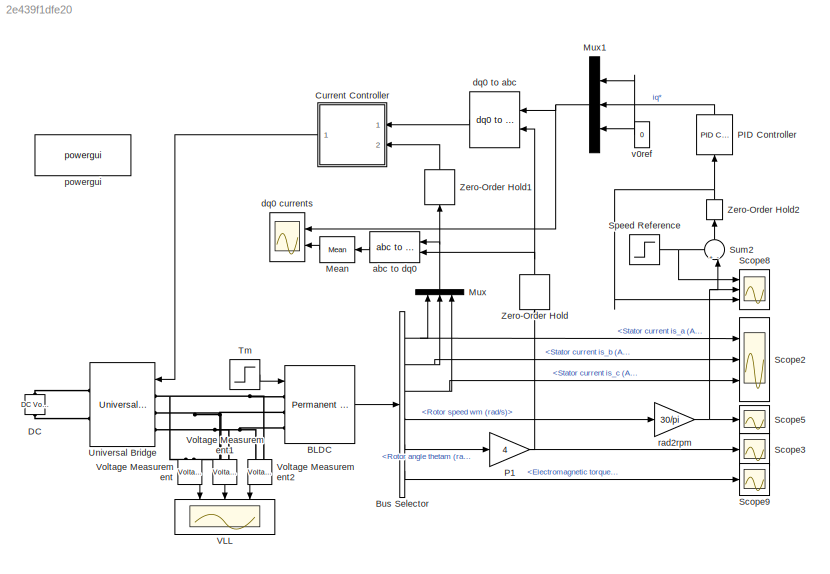
MODEL slx_2e439f1dfe20
KIND model
BLOCK [Reference] BLDC  REF=powerlib/Machines/Permanent Magnet
Synchronous Machine
  Flat = 120
  Flux = 0.0125
  FluxDistribution = Trapezoidal
  Inductance = 1e-4
  InitialConditions = [0,0, 0,0]
  InitialConditions5ph = [0 0 0 0 0 0]
  La = 0.000835
  MachineConstant = Torque Constant (N.m / A_peak)
  Mechanical = [1e-3 1e-3 4 0]
  MechanicalLoad = Torque Tm
  NbPhases = 3
  PolePairs = 4
  Ports = [1, 1, 0, 0, 0, 3]
  PresetModel = No
  RefAngle = Aligned with phase A axis (original Park)
  Resistance = 0.01
  RotorType = Round
  ShowDetailedParameters = on
  SourceBlock = powerlib/Machines/Permanent Magnet\nSynchronous Machine
  SourceType = Permanent Magnet Synchronous Machine
  TorqueCst = 0.1
  TsBlock = -1
  TsPowergui = 0
  VoltageCst = 10.472
  dqInductances = [8.5e-3,8.5e-3]
BLOCK [BusSelector] Bus Selector
  OutputSignals = Stator current is_a (A),Stator current is_b (A),Stator current is_c (A),Rotor speed wm (rad/s),Rotor angle thetam (rad),Electromagnetic torque Te (N*m)
  Ports = [1, 6]
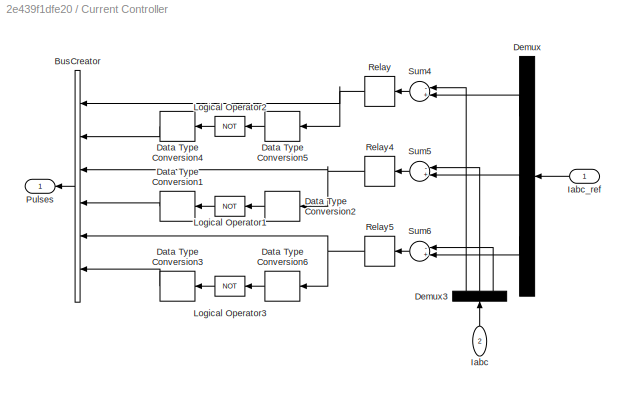
BLOCK [SubSystem] Current Controller
  FunctionWithSeparateData = off
  MaskHideContents = off
  MinAlgLoopOccurrences = off
  Opaque = off
  Ports = [2, 1]
  PropExecContextOutsideSubsystem = off
  RTWSystemCode = Auto
  RequestExecContextInheritance = off
BLOCK [BusCreator] Current Controller/BusCreator
  Inputs = 6
  Ports = [6, 1]
BLOCK [DataTypeConversion] Current Controller/Data Type Conversion1
BLOCK [DataTypeConversion] Current Controller/Data Type Conversion2
BLOCK [DataTypeConversion] Current Controller/Data Type Conversion3
BLOCK [DataTypeConversion] Current Controller/Data Type Conversion4
BLOCK [DataTypeConversion] Current Controller/Data Type Conversion5
BLOCK [DataTypeConversion] Current Controller/Data Type Conversion6
BLOCK [Demux] Current Controller/Demux
  DisplayOption = bar
  Outputs = 3
  Ports = [1, 3]
BLOCK [Demux] Current Controller/Demux3
  DisplayOption = bar
  Outputs = 3
  Ports = [1, 3]
BLOCK [Inport] Current Controller/Iabc
  IconDisplay = Port number
  Port = 2
BLOCK [Inport] Current Controller/Iabc_ref
  IconDisplay = Port number
BLOCK [Logic] Current Controller/Logical Operator1
  Operator = NOT
  Ports = [1, 1]
BLOCK [Logic] Current Controller/Logical Operator2
  Operator = NOT
  Ports = [1, 1]
BLOCK [Logic] Current Controller/Logical Operator3
  Operator = NOT
  Ports = [1, 1]
BLOCK [Outport] Current Controller/Pulses
  IconDisplay = Port number
BLOCK [Relay] Current Controller/Relay
  InputProcessing = Elements as channels (sample based)
  OffSwitchValue = -1/1000
  OnSwitchValue = 1/1000
BLOCK [Relay] Current Controller/Relay4
  InputProcessing = Elements as channels (sample based)
  OffSwitchValue = -1/1000
  OnSwitchValue = 1/1000
BLOCK [Relay] Current Controller/Relay5
  InputProcessing = Elements as channels (sample based)
  OffSwitchValue = -1/1000
  OnSwitchValue = 1/1000
BLOCK [Sum] Current Controller/Sum4
  Inputs = -+
  Ports = [2, 1]
BLOCK [Sum] Current Controller/Sum5
  Inputs = -+
  Ports = [2, 1]
BLOCK [Sum] Current Controller/Sum6
  Inputs = -+
  Ports = [2, 1]
BLOCK [Reference] DC  REF=powerlib/Electrical
Sources/DC Voltage Source
  Amplitude = 48
  Measurements = None
  Ports = [0, 0, 0, 0, 0, 1, 1]
  SourceBlock = powerlib/Electrical\nSources/DC Voltage Source
  SourceType = DC Voltage Source
BLOCK [Reference] Mean  REF=powerlib_meascontrol/Measurements/Mean
  Freq = 10
  Ports = [1, 1]
  SourceBlock = powerlib_meascontrol/Measurements/Mean
  SourceType = Mean
  Ts = 0
  Vinit = 0
BLOCK [Mux] Mux
  DisplayOption = bar
  Inputs = 3
  Ports = [3, 1]
BLOCK [Mux] Mux1
  DisplayOption = bar
  Inputs = 3
  Ports = [3, 1]
BLOCK [Gain] P1
  Gain = 4
  OutDataTypeStr = Inherit: Inherit via internal rule
  ParamDataTypeStr = Inherit: Inherit via internal rule
  SaturateOnIntegerOverflow = off
BLOCK [Reference] PID Controller  REF=simulink/Continuous/PID Controller
  AntiWindupMode = clamping
  Controller = PID
  D = 0
  DOutDataTypeStr = Inherit: Inherit via internal rule
  DOutMax = []
  DOutMin = []
  DParamDataTypeStr = Inherit: Inherit via internal rule
  DParamMax = []
  DParamMin = []
  ExternalReset = none
  FilterContinuousStateAttributes = ''
  FilterMethod = Forward Euler
  FilterOutDataTypeStr = Inherit: Inherit via internal rule
  FilterOutMax = []
  FilterOutMin = []
  FilterRTWStateStorageClass = Auto
  FilterStateMustResolveToSignalObject = off
  Form = Parallel
  I = 10
  IOutDataTypeStr = Inherit: Inherit via internal rule
  IOutMax = []
  IOutMin = []
  IParamDataTypeStr = Inherit: Inherit via internal rule
  IParamMax = []
  IParamMin = []
  IgnoreLimit = off
  InitialConditionForFilter = 0
  InitialConditionForIntegrator = 0
  InitialConditionSource = internal
  IntegratorContinuousStateAttributes = ''
  IntegratorMethod = Forward Euler
  IntegratorOutDataTypeStr = Inherit: Inherit via internal rule
  IntegratorOutMax = []
  IntegratorOutMin = []
  IntegratorRTWStateStorageClass = Auto
  IntegratorStateMustResolveToSignalObject = off
  Kb = 1
  KbOutDataTypeStr = Inherit: Inherit via internal rule
  KbOutMax = []
  KbOutMin = []
  KbParamDataTypeStr = Inherit: Inherit via internal rule
  KbParamMax = []
  KbParamMin = []
  Kt = 1
  KtOutDataTypeStr = Inherit: Inherit via internal rule
  KtOutMax = []
  KtOutMin = []
  KtParamDataTypeStr = Inherit: Inherit via internal rule
  KtParamMax = []
  KtParamMin = []
  LimitOutput = on
  LinearizeAsGain = on
  LockScale = off
  LowerSaturationLimit = -100
  N = 100
  NOutDataTypeStr = Inherit: Inherit via internal rule
  NOutMax = []
  NOutMin = []
  NParamDataTypeStr = Inherit: Inherit via internal rule
  NParamMax = []
  NParamMin = []
  P = 1
  POutDataTypeStr = Inherit: Inherit via internal rule
  POutMax = []
  POutMin = []
  PParamDataTypeStr = Inherit: Inherit via internal rule
  PParamMax = []
  PParamMin = []
  Ports = [1, 1]
  RndMeth = Floor
  SampleTime = 1
  SaturateOnIntegerOverflow = off
  SaturationOutDataTypeStr = Inherit: Same as input
  SaturationOutMax = []
  SaturationOutMin = []
  SourceBlock = simulink/Continuous/PID Controller
  SourceType = PID 1dof
  SumAccumDataTypeStr = Inherit: Inherit via internal rule
  SumDAccumDataTypeStr = Inherit: Inherit via internal rule
  SumDOutDataTypeStr = Inherit: Inherit via internal rule
  SumDOutMax = []
  SumDOutMin = []
  SumI1AccumDataTypeStr = Inherit: Inherit via internal rule
  SumI1OutDataTypeStr = Inherit: Inherit via internal rule
  SumI1OutMax = []
  SumI1OutMin = []
  SumI2AccumDataTypeStr = Inherit: Inherit via internal rule
  SumI2OutDataTypeStr = Inherit: Inherit via internal rule
  SumI2OutMax = []
  SumI2OutMin = []
  SumI3AccumDataTypeStr = Inherit: Inherit via internal rule
  SumI3OutDataTypeStr = Inherit: Inherit via internal rule
  SumI3OutMax = []
  SumI3OutMin = []
  SumOutDataTypeStr = Inherit: Inherit via internal rule
  SumOutMax = []
  SumOutMin = []
  TimeDomain = Continuous-time
  TrackingMode = off
  UpperSaturationLimit = 100
  ZeroCross = on
BLOCK [Scope] Scope2
  DataFormat = StructureWithTime
  Floating = off
  LimitDataPoints = off
  NumInputPorts = 3
  Ports = [3]
  SampleTime = 0
  ShowLegends = off
  YMax = 300~300~300
  YMin = -250~-250~-250
  ZoomMode = xonly
BLOCK [Scope] Scope3
  DataFormat = StructureWithTime
  Floating = off
  LimitDataPoints = off
  NumInputPorts = 1
  Ports = [1]
  SampleTime = 0
  SaveName = ScopeData1
  ShowLegends = off
  YMax = 7000
  YMin = 0
  ZoomMode = xonly
BLOCK [Scope] Scope5
  DataFormat = StructureWithTime
  Floating = off
  LimitDataPoints = off
  NumInputPorts = 1
  Ports = [1]
  SampleTime = 0
  SaveName = ScopeData5
  ShowLegends = off
  YMax = 7000
  YMin = -7000
BLOCK [Scope] Scope8
  DataFormat = StructureWithTime
  Floating = off
  LimitDataPoints = off
  NumInputPorts = 3
  Ports = [3]
  SampleTime = 0
  SaveName = ScopeData10
  ShowLegends = off
  YMax = 5000~5000~10
  YMin = -5000~-5000~-10
  ZoomMode = xonly
BLOCK [Scope] Scope9
  DataFormat = StructureWithTime
  Floating = off
  LimitDataPoints = off
  NumInputPorts = 1
  Ports = [1]
  SampleTime = 0
  SaveName = ScopeData11
  ShowLegends = off
  YMax = 10
  YMin = -10
  ZoomMode = xonly
BLOCK [Step] Speed Reference
  After = 4000
  Before = -4000
  SampleTime = 0
  Time = 2
BLOCK [Sum] Sum2
  IconShape = round
  InputSameDT = off
  Inputs = +-|
  OutDataTypeStr = Inherit: Inherit via internal rule
  Ports = [2, 1]
  SaturateOnIntegerOverflow = off
BLOCK [Step] Tm
  After = 0
  SampleTime = 0
  Time = 2
BLOCK [Reference] Universal Bridge  REF=powerlib/Power
Electronics/Universal Bridge
  Arms = 3
  Device = MOSFET / Diodes
  ForwardVoltage = 0
  ForwardVoltages = [  0  0  ]
  GTOparameters = [ 10e-6 , 20e-6 ]
  IGBTparameters = [ 1e-6 , 2e-6 ]
  Lon = 0
  Measurements = None
  Measurements_2 = None
  Ports = [1, 0, 0, 0, 0, 3, 2]
  Ron = 1e-3
  SnubberCapacitance = 1e-6
  SnubberResistance = 5000
  SourceBlock = powerlib/Power\nElectronics/Universal Bridge
  SourceType = Universal Bridge
  converterType = Rectifier
BLOCK [Scope] VLL
  DataFormat = StructureWithTime
  Floating = off
  LimitDataPoints = off
  NumInputPorts = 3
  Ports = [3]
  SampleTime = 0
  SaveName = ScopeData3
  ShowLegends = off
  YMax = 100~100~100
  YMin = -100~-100~-100
  ZoomMode = xonly
BLOCK [Reference] Voltage Measurement  REF=powerlib/Measurements/Voltage Measurement
  OutputType = Complex
  PSBequivalent = 0
  PhasorSimulation = off
  Ports = [0, 1, 0, 0, 0, 2]
  SourceBlock = powerlib/Measurements/Voltage Measurement
  SourceType = Voltage Measurement
BLOCK [Reference] Voltage Measurement1  REF=powerlib/Measurements/Voltage Measurement
  OutputType = Complex
  PSBequivalent = 0
  PhasorSimulation = off
  Ports = [0, 1, 0, 0, 0, 2]
  SourceBlock = powerlib/Measurements/Voltage Measurement
  SourceType = Voltage Measurement
BLOCK [Reference] Voltage Measurement2  REF=powerlib/Measurements/Voltage Measurement
  OutputType = Complex
  PSBequivalent = 0
  PhasorSimulation = off
  Ports = [0, 1, 0, 0, 0, 2]
  SourceBlock = powerlib/Measurements/Voltage Measurement
  SourceType = Voltage Measurement
BLOCK [ZeroOrderHold] Zero-Order Hold
  SampleTime = 1e-4
BLOCK [ZeroOrderHold] Zero-Order Hold1
  SampleTime = 1e-4
BLOCK [ZeroOrderHold] Zero-Order Hold2
  SampleTime = 1e-4
BLOCK [Reference] abc to dq0  REF=powerlib_meascontrol/Transformations/abc to dq0
  Alignment = Aligned with phase A axis
  Ports = [2, 1]
  SourceBlock = powerlib_meascontrol/Transformations/abc to dq0
  SourceType = abc to dq0 Transformation
BLOCK [Scope] dq0 currents
  DataFormat = StructureWithTime
  Floating = off
  LimitDataPoints = off
  NumInputPorts = 2
  Ports = [2]
  SampleTime = 0
  SaveName = ScopeData4
  ShowLegends = off
  YMax = 110~110
  YMin = -10~-10
  ZoomMode = xonly
BLOCK [Reference] dq0 to abc  REF=powerlib_meascontrol/Transformations/dq0 to abc
  Alignment = Aligned with phase A axis
  Ports = [2, 1]
  SourceBlock = powerlib_meascontrol/Transformations/dq0 to abc
  SourceType = dq0 to abc Transformation
BLOCK [Reference] powergui  REF=powerlib/powergui
  DisableRonSwitches = off
  DisableSnubberDevices = off
  DisableVfSwitches = off
  DisplayEquations = off
  DisplayStyle = 1
  EnableUseOfTLC = off
  ErrMax = 1e-4
  Frange = [0:2:500]
  FreqAxis = off
  FunctionMessages = off
  HookPort = off
  Interpol = off
  Iterations = 50
  MaxFrequency = 1000
  Pbase = 100e6
  Ports = []
  Priority = 2
  ResistiveCurrentMeasurement = off
  RestoreLinks = warning
  RmsSteady = 1
  SPID = off
  SampleTime = 1e-5
  ShowGrid = off
  SolverType = Backward Euler
  SourceBlock = powerlib/powergui
  SourceType = PSB option menu block
  StartTime = 0.0
  SwTol = 0
  Ts = 0
  UnitsV = kV
  UnitsW = MW
  UserDataPersistent = on
  Xlog = on
  Ylog = off
  ZoomFFT = on
  cycles = 1
  display = off
  echomessages = off
  frequency = 60
  frequencyindice = 0
  frequencyindicesteady = 1
  fundamental = 60
  methode = off
  save = off
  variable = ZData
  x0status = blocks
BLOCK [Gain] rad2rpm
  Gain = 30/pi
  OutDataTypeStr = Inherit: Inherit via internal rule
  ParamDataTypeStr = Inherit: Inherit via internal rule
  SaturateOnIntegerOverflow = off
BLOCK [Constant] v0ref
  Value = 0
LINE BLDC:1 -> Bus Selector:1
NET Bus Selector:1 -> Mux:1, Scope2:1
NET Bus Selector:2 -> Mux:2, Scope2:2
NET Bus Selector:3 -> Mux:3, Scope2:3
LINE Bus Selector:4 -> rad2rpm:1
LINE Bus Selector:5 -> P1:1
LINE Bus Selector:6 -> Scope9:1
LINE Current Controller/BusCreator:1 -> Current Controller/Pulses:1
LINE Current Controller/Data Type Conversion1:1 -> Current Controller/BusCreator:4
LINE Current Controller/Data Type Conversion2:1 -> Current Controller/Logical Operator1:1
LINE Current Controller/Data Type Conversion3:1 -> Current Controller/BusCreator:6
LINE Current Controller/Data Type Conversion4:1 -> Current Controller/BusCreator:2
LINE Current Controller/Data Type Conversion5:1 -> Current Controller/Logical Operator2:1
LINE Current Controller/Data Type Conversion6:1 -> Current Controller/Logical Operator3:1
LINE Current Controller/Demux3:1 -> Current Controller/Sum4:1
LINE Current Controller/Demux3:2 -> Current Controller/Sum5:1
LINE Current Controller/Demux3:3 -> Current Controller/Sum6:1
LINE Current Controller/Demux:1 -> Current Controller/Sum4:2
LINE Current Controller/Demux:2 -> Current Controller/Sum5:2
LINE Current Controller/Demux:3 -> Current Controller/Sum6:2
LINE Current Controller/Iabc:1 -> Current Controller/Demux3:1
LINE Current Controller/Iabc_ref:1 -> Current Controller/Demux:1
LINE Current Controller/Logical Operator1:1 -> Current Controller/Data Type Conversion1:1
LINE Current Controller/Logical Operator2:1 -> Current Controller/Data Type Conversion4:1
LINE Current Controller/Logical Operator3:1 -> Current Controller/Data Type Conversion3:1
NET Current Controller/Relay4:1 -> Current Controller/BusCreator:3, Current Controller/Data Type Conversion2:1
NET Current Controller/Relay5:1 -> Current Controller/BusCreator:5, Current Controller/Data Type Conversion6:1
NET Current Controller/Relay:1 -> Current Controller/BusCreator:1, Current Controller/Data Type Conversion5:1
LINE Current Controller/Sum4:1 -> Current Controller/Relay:1
LINE Current Controller/Sum5:1 -> Current Controller/Relay4:1
LINE Current Controller/Sum6:1 -> Current Controller/Relay5:1
LINE Current Controller:1 -> Universal Bridge:1
LINE Mean:1 -> dq0 currents:2
NET Mux1:1 -> dq0 currents:1, dq0 to abc:1
NET Mux:1 -> Zero-Order Hold1:1, abc to dq0:1
NET P1:1 -> Scope3:1, Zero-Order Hold:1
LINE PID Controller:1 -> Mux1:2
NET Speed Reference:1 -> Scope8:1, Sum2:1
LINE Sum2:1 -> Zero-Order Hold2:1
LINE Tm:1 -> BLDC:1
LINE Voltage Measurement1:1 -> VLL:2
LINE Voltage Measurement2:1 -> VLL:3
LINE Voltage Measurement:1 -> VLL:1
LINE Zero-Order Hold1:1 -> Current Controller:2
NET Zero-Order Hold2:1 -> PID Controller:1, Scope8:3
NET Zero-Order Hold:1 -> abc to dq0:2, dq0 to abc:2
LINE abc to dq0:1 -> Mean:1
LINE dq0 to abc:1 -> Current Controller:1
NET rad2rpm:1 -> Scope5:1, Scope8:2, Sum2:2
NET v0ref:1 -> Mux1:1, Mux1:3
PNET net1: BLDC:LConn1 -- Universal Bridge:LConn1 -- Voltage Measurement2:LConn2 -- Voltage Measurement:LConn1
PNET net2: BLDC:LConn2 -- Universal Bridge:LConn2 -- Voltage Measurement1:LConn1 -- Voltage Measurement:LConn2
PNET net3: BLDC:LConn3 -- Universal Bridge:LConn3 -- Voltage Measurement1:LConn2 -- Voltage Measurement2:LConn1
PLINE DC:LConn1 -- Universal Bridge:RConn2
PLINE DC:RConn1 -- Universal Bridge:RConn1
note: NET lines group one-source signal fan-out (src -> all destinations, sorted); 1:1 wires keep LINE; PNET lines group multi-terminal physical nets as a canonical sorted terminal list (undirected conserving connections); 2-terminal nets keep the pairwise PLINE form
